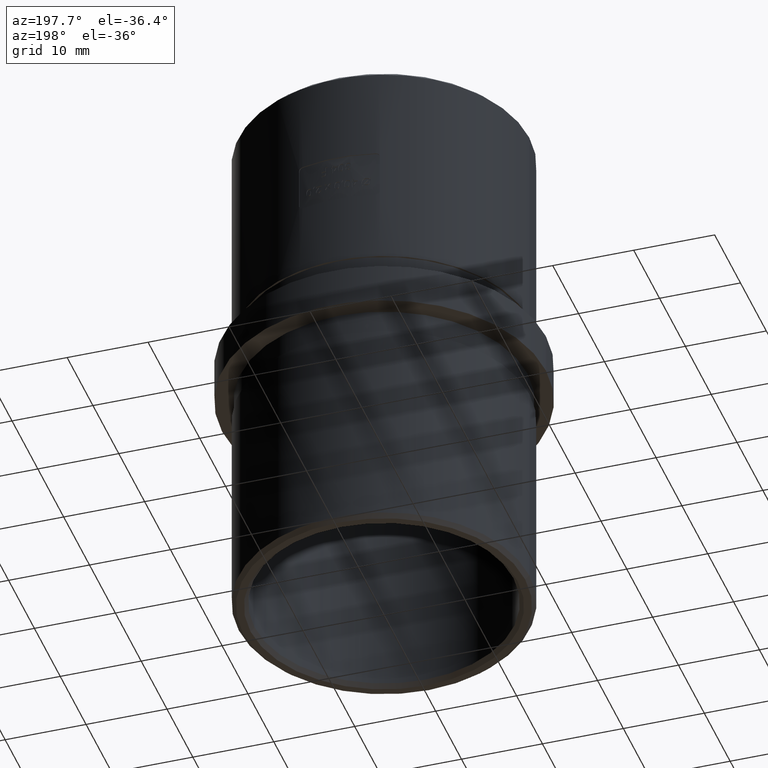
[diagram: clean part render]
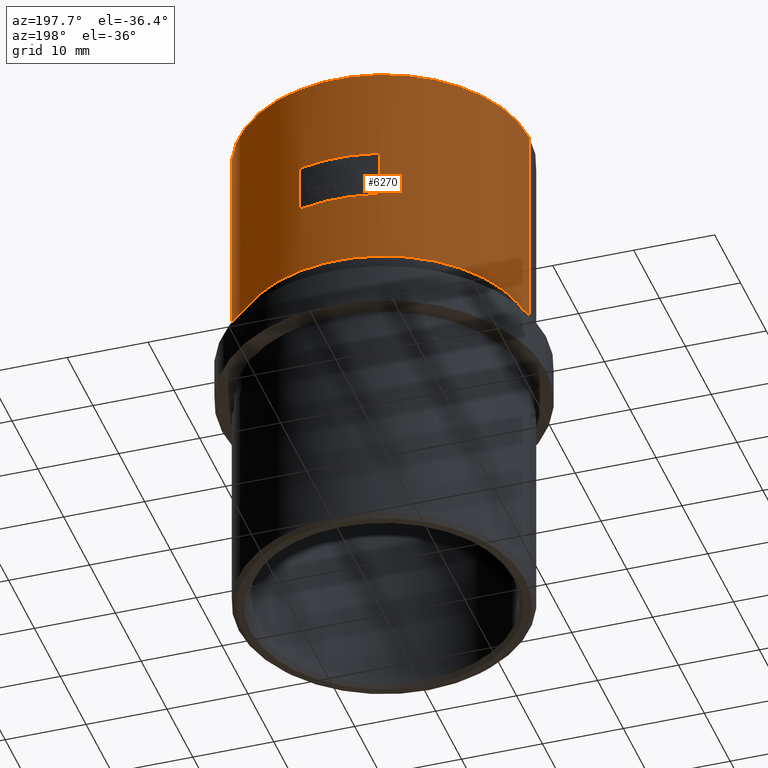
[diagram: same view with one face highlighted and labeled with its STEP entity id]
A machine part, auxiliary view. The second image highlights one B-rep face of the part: STEP entity #6270.
In plain terms, the highlighted cylindrical surface (partial cylindrical patch) has radius 17.95 mm, axis along (-0, -0, -1).
Its self-contained STEP definition (entity closure, byte-faithful):
#99 = CIRCLE ( 'NONE', #2073, 17.94999999999999900 ) ;
#447 = ORIENTED_EDGE ( 'NONE', *, *, #11021, .F. ) ;
#712 = CARTESIAN_POINT ( 'NONE',  ( -4.999999999999996400, 17.23956205940279000, 15.00000000000000000 ) ) ;
#870 = DIRECTION ( 'NONE',  ( -0.0000000000000000000, -0.0000000000000000000, -1.000000000000000000 ) ) ;
#1169 = LINE ( 'NONE', #2301, #9948 ) ;
#1173 = VECTOR ( 'NONE', #4522, 1000.000000000000000 ) ;
#1277 = DIRECTION ( 'NONE',  ( 1.000000000000000000, 0.0000000000000000000, 3.865679055101520300E-016 ) ) ;
#1311 = DIRECTION ( 'NONE',  ( 0.0000000000000000000, 0.0000000000000000000, -1.000000000000000000 ) ) ;
#1548 = EDGE_CURVE ( 'NONE', #16083, #15051, #16307, .T. ) ;
#1704 = VERTEX_POINT ( 'NONE', #3902 ) ;
#1752 = CARTESIAN_POINT ( 'NONE',  ( -4.499999999999998200, 17.37678048431297000, 20.50000000000000400 ) ) ;
#2073 = AXIS2_PLACEMENT_3D ( 'NONE', #20018, #1311, #3158 ) ;
#2147 = ORIENTED_EDGE ( 'NONE', *, *, #7850, .T. ) ;
#2301 = CARTESIAN_POINT ( 'NONE',  ( 5.000000000000003600, 17.23956205940278600, 32.50000000000000000 ) ) ;
#2452 = ORIENTED_EDGE ( 'NONE', *, *, #1548, .T. ) ;
#2569 = EDGE_CURVE ( 'NONE', #16216, #15051, #1169, .T. ) ;
#2748 = EDGE_LOOP ( 'NONE', ( #9470, #13341, #10270, #5182 ) ) ;
#2787 = VERTEX_POINT ( 'NONE', #20090 ) ;
#2843 = AXIS2_PLACEMENT_3D ( 'NONE', #21406, #18036, #14683 ) ;
#3158 = DIRECTION ( 'NONE',  ( 1.000000000000000000, 0.0000000000000000000, 0.0000000000000000000 ) ) ;
#3548 = DIRECTION ( 'NONE',  ( -0.0000000000000000000, -0.0000000000000000000, -1.000000000000000000 ) ) ;
#3586 = EDGE_CURVE ( 'NONE', #6932, #2787, #99, .T. ) ;
#3902 = CARTESIAN_POINT ( 'NONE',  ( -4.499999999999998200, 17.37678048431297000, 20.50000000000000400 ) ) ;
#4033 = ORIENTED_EDGE ( 'NONE', *, *, #7137, .T. ) ;
#4522 = DIRECTION ( 'NONE',  ( -0.0000000000000000000, -0.0000000000000000000, -1.000000000000000000 ) ) ;
#4742 = DIRECTION ( 'NONE',  ( -3.469446951953614700E-016, 0.0000000000000000000, 1.000000000000000000 ) ) ;
#4743 = CARTESIAN_POINT ( 'NONE',  ( 5.000000000000003600, 17.23956205940278600, 20.00000000000000400 ) ) ;
#5021 = CARTESIAN_POINT ( 'NONE',  ( 0.0000000000000000000, 0.0000000000000000000, 5.500000000000000000 ) ) ;
#5063 = CARTESIAN_POINT ( 'NONE',  ( -4.999999999999996400, 17.23956205940279000, 20.00000000000000000 ) ) ;
#5132 = CARTESIAN_POINT ( 'NONE',  ( -5.000000000000185600, 17.23956205940288600, 20.13459946485318100 ) ) ;
#5159 = CARTESIAN_POINT ( 'NONE',  ( -4.499999999999999100, 17.37678048431297000, 14.49999999999999800 ) ) ;
#5182 = ORIENTED_EDGE ( 'NONE', *, *, #15806, .F. ) ;
#5342 = VERTEX_POINT ( 'NONE', #15449 ) ;
#5596 = CARTESIAN_POINT ( 'NONE',  ( -4.499999999999999100, 17.37678048431297000, 14.49999999999999800 ) ) ;
#5828 = VERTEX_POINT ( 'NONE', #12285 ) ;
#6222 = CARTESIAN_POINT ( 'NONE',  ( -17.94999999999999900, 0.0000000000000000000, 5.500000000000000000 ) ) ;
#6227 = VERTEX_POINT ( 'NONE', #6222 ) ;
#6270 = ADVANCED_FACE ( 'NONE', ( #14753, #15820 ), #16895, .T. ) ;
#6463 = CARTESIAN_POINT ( 'NONE',  ( 4.500000000000001800, 17.37678048431296700, 20.50000000000000400 ) ) ;
#6659 = DIRECTION ( 'NONE',  ( 0.0000000000000000000, 0.0000000000000000000, 1.000000000000000000 ) ) ;
#6667 = EDGE_LOOP ( 'NONE', ( #18590, #13001, #16032, #2147, #4033, #13575, #447, #2452 ) ) ;
#6766 = VERTEX_POINT ( 'NONE', #5159 ) ;
#6917 = CIRCLE ( 'NONE', #21591, 17.94999999999999900 ) ;
#6932 = VERTEX_POINT ( 'NONE', #18448 ) ;
#7137 = EDGE_CURVE ( 'NONE', #17590, #21421, #15286, .T. ) ;
#7687 = EDGE_CURVE ( 'NONE', #2787, #5342, #19752, .T. ) ;
#7722 = CARTESIAN_POINT ( 'NONE',  ( 5.000000000000003600, 17.23956205940278600, 15.00000000000000000 ) ) ;
#7777 = AXIS2_PLACEMENT_3D ( 'NONE', #5021, #6659, #10362 ) ;
#7841 = B_SPLINE_CURVE_WITH_KNOTS ( 'NONE', 3,
 ( #11938, #15352, #18759, #8590, #19179, #5596 ),
 .UNSPECIFIED., .F., .F.,
 ( 4, 2, 4 ),
 ( 1.734723475976807100E-018, 0.0003976834245606982500, 0.0007953668491213947700 ),
 .UNSPECIFIED. ) ;
#7850 = EDGE_CURVE ( 'NONE', #1704, #17590, #11006, .T. ) ;
#7915 = LINE ( 'NONE', #18848, #22033 ) ;
#7968 = CARTESIAN_POINT ( 'NONE',  ( 17.94999999999999900, 2.198241004469499100E-015, 32.50000000000000000 ) ) ;
#8590 = CARTESIAN_POINT ( 'NONE',  ( -4.757922490112215500, 17.30820477505622500, 14.55233567327827200 ) ) ;
#9062 = CARTESIAN_POINT ( 'NONE',  ( 5.000000000000187400, 17.23956205940287800, 14.86540053514682400 ) ) ;
#9210 = CARTESIAN_POINT ( 'NONE',  ( 4.757355252514846800, 17.30836259794934800, 14.55190009174145500 ) ) ;
#9470 = ORIENTED_EDGE ( 'NONE', *, *, #3586, .T. ) ;
#9712 = CARTESIAN_POINT ( 'NONE',  ( -4.999999999999996400, 17.23956205940279000, 32.50000000000000000 ) ) ;
#9863 = DIRECTION ( 'NONE',  ( -0.0000000000000000000, 0.0000000000000000000, 1.000000000000000000 ) ) ;
#9881 = CARTESIAN_POINT ( 'NONE',  ( 5.000000000000002700, 17.23956205940278600, 20.13450537316964200 ) ) ;
#9948 = VECTOR ( 'NONE', #870, 1000.000000000000000 ) ;
#10119 = CARTESIAN_POINT ( 'NONE',  ( -4.943500128035390500, 17.25611924231044700, 20.26520348830830200 ) ) ;
#10270 = ORIENTED_EDGE ( 'NONE', *, *, #20635, .T. ) ;
#10362 = DIRECTION ( 'NONE',  ( 1.000000000000000000, 0.0000000000000000000, 0.0000000000000000000 ) ) ;
#11006 = B_SPLINE_CURVE_WITH_KNOTS ( 'NONE', 3,
 ( #1752, #15250, #18589, #10119, #5132, #5063 ),
 .UNSPECIFIED., .F., .F.,
 ( 4, 2, 4 ),
 ( 8.673617379884035500E-019, 0.0003976903646651594200, 0.0007953807293303179700 ),
 .UNSPECIFIED. ) ;
#11021 = EDGE_CURVE ( 'NONE', #16083, #6766, #20668, .T. ) ;
#11938 = CARTESIAN_POINT ( 'NONE',  ( -4.999999999999996400, 17.23956205940279000, 15.00000000000000000 ) ) ;
#12285 = CARTESIAN_POINT ( 'NONE',  ( 4.500000000000001800, 17.37678048431296700, 20.50000000000000400 ) ) ;
#12345 = AXIS2_PLACEMENT_3D ( 'NONE', #14914, #9863, #16554 ) ;
#12691 = CARTESIAN_POINT ( 'NONE',  ( 4.630165284242730600, 17.34307206636862700, 14.50000000000000200 ) ) ;
#12927 = CARTESIAN_POINT ( 'NONE',  ( 0.0000000000000000000, 0.0000000000000000000, 20.50000000000000400 ) ) ;
#13001 = ORIENTED_EDGE ( 'NONE', *, *, #13239, .T. ) ;
#13239 = EDGE_CURVE ( 'NONE', #16216, #5828, #14797, .T. ) ;
#13341 = ORIENTED_EDGE ( 'NONE', *, *, #7687, .T. ) ;
#13575 = ORIENTED_EDGE ( 'NONE', *, *, #20702, .T. ) ;
#14683 = DIRECTION ( 'NONE',  ( -1.000000000000000000, 0.0000000000000000000, 0.0000000000000000000 ) ) ;
#14753 = FACE_BOUND ( 'NONE', #6667, .T. ) ;
#14797 = B_SPLINE_CURVE_WITH_KNOTS ( 'NONE', 3,
 ( #4743, #9881, #21727, #16724, #15530, #6463 ),
 .UNSPECIFIED., .F., .F.,
 ( 4, 2, 4 ),
 ( 0.0000000000000000000, 0.0003976834245606972700, 0.0007953668491213945500 ),
 .UNSPECIFIED. ) ;
#14914 = CARTESIAN_POINT ( 'NONE',  ( 0.0000000000000000000, 0.0000000000000000000, 14.49999999999999800 ) ) ;
#15051 = VERTEX_POINT ( 'NONE', #16193 ) ;
#15250 = CARTESIAN_POINT ( 'NONE',  ( -4.630165284242727900, 17.34307206636862700, 20.50000000000000000 ) ) ;
#15286 = LINE ( 'NONE', #9712, #21133 ) ;
#15352 = CARTESIAN_POINT ( 'NONE',  ( -4.999999999999998200, 17.23956205940279000, 14.86549462683035800 ) ) ;
#15449 = CARTESIAN_POINT ( 'NONE',  ( 17.94999999999999900, 2.198241004469499100E-015, 5.500000000000000000 ) ) ;
#15530 = CARTESIAN_POINT ( 'NONE',  ( 4.630084673627798100, 17.34309294179877600, 20.50000000000000400 ) ) ;
#15806 = EDGE_CURVE ( 'NONE', #6932, #6227, #7915, .T. ) ;
#15820 = FACE_OUTER_BOUND ( 'NONE', #2748, .T. ) ;
#15882 = CARTESIAN_POINT ( 'NONE',  ( 4.943500128035394100, 17.25611924231044000, 14.73479651169169800 ) ) ;
#16032 = ORIENTED_EDGE ( 'NONE', *, *, #19443, .T. ) ;
#16083 = VERTEX_POINT ( 'NONE', #20396 ) ;
#16193 = CARTESIAN_POINT ( 'NONE',  ( 5.000000000000003600, 17.23956205940278600, 15.00000000000000000 ) ) ;
#16216 = VERTEX_POINT ( 'NONE', #17028 ) ;
#16307 = B_SPLINE_CURVE_WITH_KNOTS ( 'NONE', 3,
 ( #19361, #12691, #9210, #15882, #9062, #7722 ),
 .UNSPECIFIED., .F., .F.,
 ( 4, 2, 4 ),
 ( 0.0000000000000000000, 0.0003976903646651590900, 0.0007953807293303181900 ),
 .UNSPECIFIED. ) ;
#16554 = DIRECTION ( 'NONE',  ( 1.000000000000000000, 0.0000000000000000000, 0.0000000000000000000 ) ) ;
#16724 = CARTESIAN_POINT ( 'NONE',  ( 4.757922490112218100, 17.30820477505622200, 20.44766432672172800 ) ) ;
#16895 = CYLINDRICAL_SURFACE ( 'NONE', #2843, 17.94999999999999900 ) ;
#17028 = CARTESIAN_POINT ( 'NONE',  ( 5.000000000000003600, 17.23956205940278600, 20.00000000000000400 ) ) ;
#17285 = CIRCLE ( 'NONE', #7777, 17.94999999999999900 ) ;
#17590 = VERTEX_POINT ( 'NONE', #19799 ) ;
#18036 = DIRECTION ( 'NONE',  ( -0.0000000000000000000, -0.0000000000000000000, -1.000000000000000000 ) ) ;
#18272 = DIRECTION ( 'NONE',  ( -0.0000000000000000000, -0.0000000000000000000, -1.000000000000000000 ) ) ;
#18448 = CARTESIAN_POINT ( 'NONE',  ( -17.94999999999999900, 0.0000000000000000000, 31.99999999999998600 ) ) ;
#18589 = CARTESIAN_POINT ( 'NONE',  ( -4.757355252514845000, 17.30836259794935500, 20.44809990825854800 ) ) ;
#18590 = ORIENTED_EDGE ( 'NONE', *, *, #2569, .F. ) ;
#18759 = CARTESIAN_POINT ( 'NONE',  ( -4.943409501002030000, 17.25614329630458600, 14.73482953643735400 ) ) ;
#18848 = CARTESIAN_POINT ( 'NONE',  ( -17.94999999999999900, 0.0000000000000000000, 32.50000000000000000 ) ) ;
#19179 = CARTESIAN_POINT ( 'NONE',  ( -4.630084673627793600, 17.34309294179878000, 14.50000000000000000 ) ) ;
#19361 = CARTESIAN_POINT ( 'NONE',  ( 4.500000000000000000, 17.37678048431296700, 14.49999999999999800 ) ) ;
#19443 = EDGE_CURVE ( 'NONE', #5828, #1704, #6917, .T. ) ;
#19752 = LINE ( 'NONE', #7968, #1173 ) ;
#19799 = CARTESIAN_POINT ( 'NONE',  ( -4.999999999999996400, 17.23956205940279000, 20.00000000000000000 ) ) ;
#20018 = CARTESIAN_POINT ( 'NONE',  ( 0.0000000000000000000, 0.0000000000000000000, 31.99999999999998600 ) ) ;
#20090 = CARTESIAN_POINT ( 'NONE',  ( 17.94999999999999900, 2.198241004469499100E-015, 31.99999999999998600 ) ) ;
#20396 = CARTESIAN_POINT ( 'NONE',  ( 4.500000000000000000, 17.37678048431296700, 14.49999999999999800 ) ) ;
#20635 = EDGE_CURVE ( 'NONE', #5342, #6227, #17285, .T. ) ;
#20668 = CIRCLE ( 'NONE', #12345, 17.94999999999999900 ) ;
#20702 = EDGE_CURVE ( 'NONE', #21421, #6766, #7841, .T. ) ;
#21133 = VECTOR ( 'NONE', #18272, 1000.000000000000000 ) ;
#21406 = CARTESIAN_POINT ( 'NONE',  ( 0.0000000000000000000, 0.0000000000000000000, 32.50000000000000000 ) ) ;
#21421 = VERTEX_POINT ( 'NONE', #712 ) ;
#21591 = AXIS2_PLACEMENT_3D ( 'NONE', #12927, #4742, #1277 ) ;
#21727 = CARTESIAN_POINT ( 'NONE',  ( 4.943409501002035400, 17.25614329630457900, 20.26517046356265400 ) ) ;
#22033 = VECTOR ( 'NONE', #3548, 1000.000000000000000 ) ;